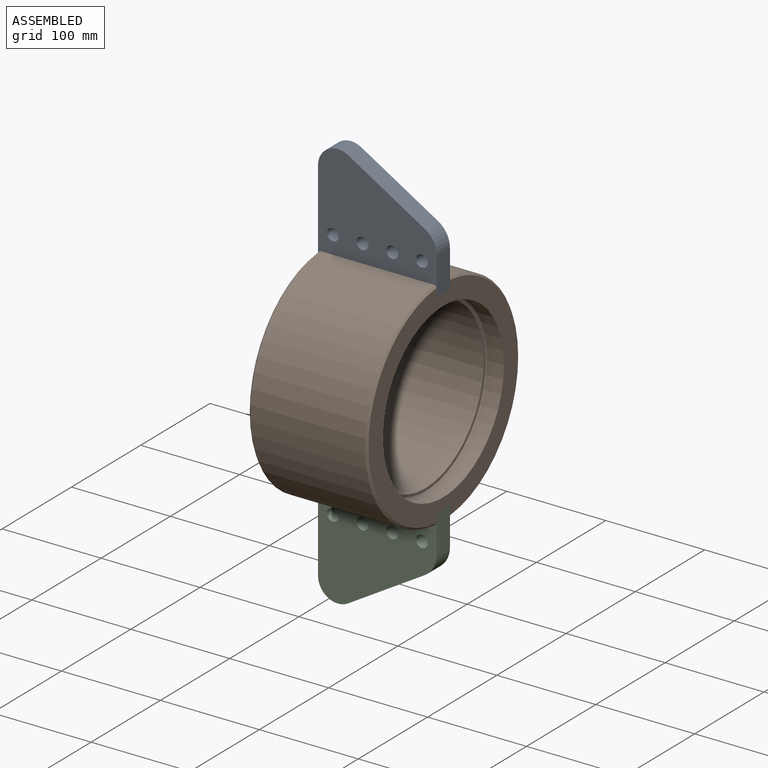
[diagram: assembled view]
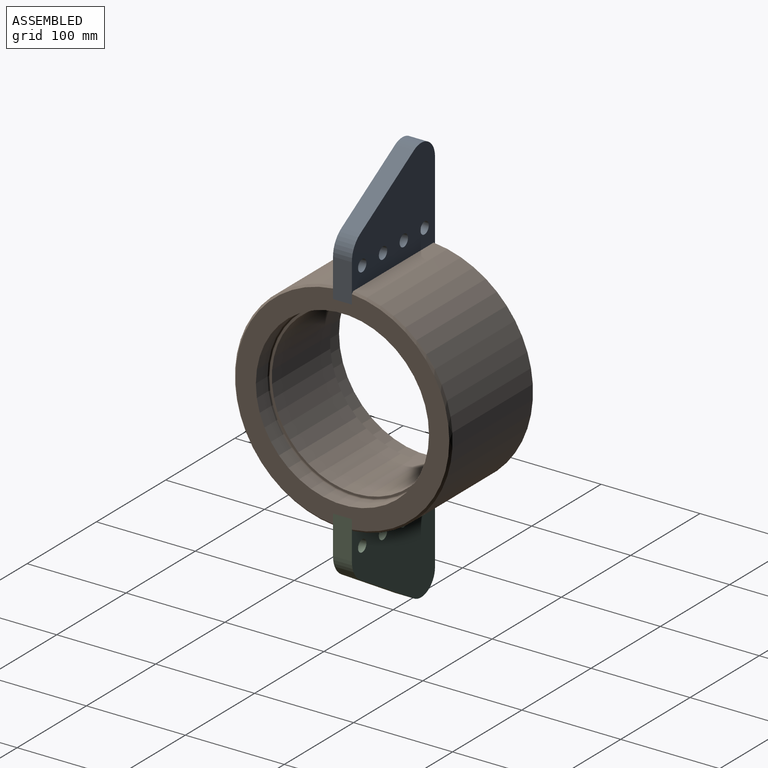
[diagram: assembled view, second angle]
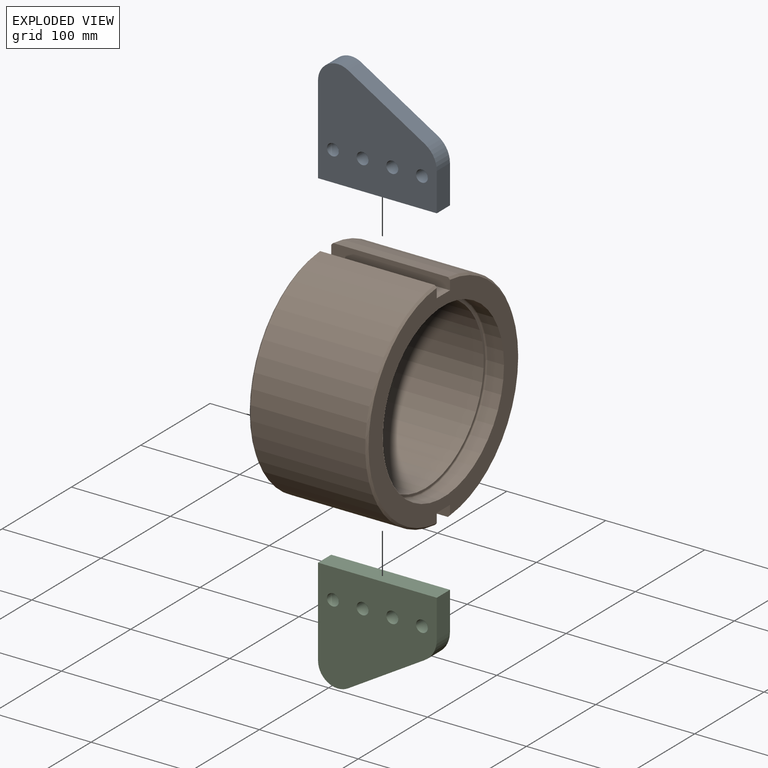
[diagram: exploded view]
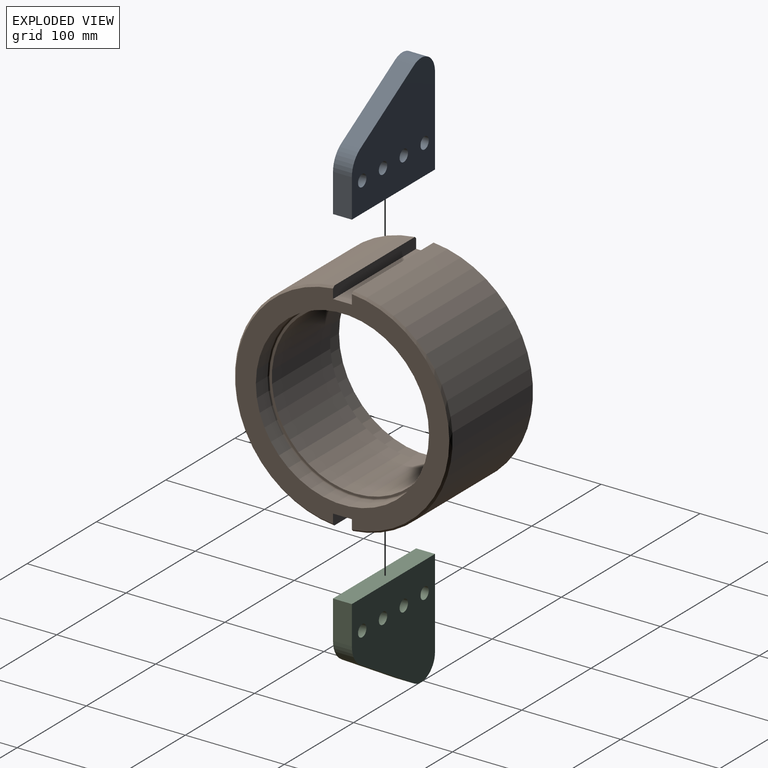
[diagram: exploded view, second angle]
ASSEMBLY  parts=3 mates=2
PART A: 12 faces, bbox 120x19.1x109.6 mm
  f0: plane 38.71x19.05mm, normal (1,0,0), area 737.4mm2, adj f1,f4,f5,f6
  f1: cylinder r=25mm len=21.43mm, axis (0,1,0), area 490.4mm2, adj f0,f2,f5,f6
  f2: plane 77.58x46.61mm, normal (0.52,0,0.86), area 1724.1mm2, adj f1,f5,f6,f11
  f3: plane 89.61x19.05mm, normal (-1,0,0), area 1707mm2, adj f4,f5,f6,f11
  f4: plane 120x19.05mm, normal (0,0,-1), area 2286mm2, adj f0,f3,f5,f6
  f5: plane 120x109.61mm, normal (0,-1,0), area 9899.6mm2, adj f0,f1,f2,f3,f4,f7,f8,f9
  f6: plane 120x109.61mm, normal (0,1,0), area 9899.6mm2, adj f0,f1,f2,f3,f4,f7,f8,f9
  f7: cylinder r=6mm len=19.05mm, axis (0,1,0), area 718.2mm2, adj f5,f6
  f8: cylinder r=6mm len=19.05mm, axis (0,1,0), area 718.2mm2, adj f5,f6
  f9: cylinder r=6mm len=19.05mm, axis (0,1,0), area 718.2mm2, adj f5,f6
  f10: cylinder r=6mm len=19.05mm, axis (0,1,0), area 718.2mm2, adj f5,f6
  f11: cylinder r=20mm len=30.3mm, axis (0,1,0), area 804.6mm2, adj f2,f3,f5,f6
PART B: 21 faces, bbox 120x220x219.2 mm
  f0: cylinder r=110mm len=219.17mm, axis (1,0,0), area 37874.2mm2, adj f1,f3,f18,f20
  f1: plane 120x11.59mm, normal (0,1,0), area 1386.4mm2, adj f0,f2,f4,f5,f18,f20
  f2: plane 216x215.16mm, normal (-1,0,0), area 12215.1mm2, adj f1,f3,f5,f6,f7,f9,f15,f17
  f3: plane 120x11.59mm, normal (0,1,0), area 1386.4mm2, adj f0,f2,f4,f6,f18,f20
  f4: plane 216x215.16mm, normal (1,0,0), area 12215.1mm2, adj f1,f3,f5,f6,f7,f9,f13,f19
  f5: plane 120x19.05mm, normal (0,0,-1), area 2286mm2, adj f1,f2,f4,f9
  f6: plane 120x19.05mm, normal (0,0,1), area 2286mm2, adj f2,f3,f4,f7
  f7: plane 120x11.59mm, normal (0,-1,0), area 1386.4mm2, adj f2,f4,f6,f8,f17,f19
  f8: cylinder r=110mm len=219.17mm, axis (1,0,0), area 37874.2mm2, adj f7,f9,f17,f19
  f9: plane 120x11.59mm, normal (0,-1,0), area 1386.4mm2, adj f2,f4,f5,f8,f17,f19
  f10: plane 172x172mm, normal (-1,0,0), area 1068.1mm2, adj f12,f16
  f11: plane 172x172mm, normal (1,0,0), area 1068.1mm2, adj f12,f14
  f12: cylinder r=84mm len=168mm, axis (1,0,0), area 44334.2mm2, adj f10,f11
  f13: cylinder r=87.5mm len=175mm, axis (1,0,0), area 9071.3mm2, adj f4,f14
  f14: torus R=86mm, axis (1,0,0), area 1287.3mm2, adj f11,f13
  f15: cylinder r=87.5mm len=175mm, axis (1,0,0), area 9071.3mm2, adj f2,f16
  f16: torus R=86mm, axis (1,0,0), area 1287.3mm2, adj f10,f15
  f17: cone r=110mm half-angle=45deg, axis (1,0,0), area 914.6mm2, adj f2,f7,f8,f9
  f18: cone r=110mm half-angle=45deg, axis (1,0,0), area 914.6mm2, adj f0,f1,f2,f3
  f19: cone r=108mm half-angle=45deg, axis (-1,0,0), area 914.6mm2, adj f4,f7,f8,f9
  f20: cone r=108mm half-angle=45deg, axis (-1,0,0), area 914.6mm2, adj f0,f1,f3,f4
PART C: same geometry as A
PLACE A t=(0,9.53,-200)mm
PLACE B at identity
PLACE C rot(axis=(1,0,0),180deg) t=(0,-9.53,200)mm
MATE fastened A.f4 <-> B.f6  axis (0,0,-1) through (56,0,98)mm
MATE fastened C.f4 <-> B.f5  axis (0,0,1) through (56,0,-98)mm
